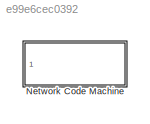
MODEL slx_e99e6cec0392
KIND library
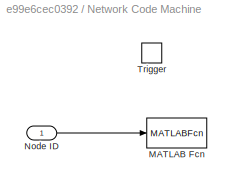
BLOCK [SubSystem] Network Code Machine
  FunctionWithSeparateData = off
  MaskHideContents = off
  MinAlgLoopOccurrences = off
  Opaque = off
  Ports = [1, 0, 0, 1]
  PropExecContextOutsideSubsystem = off
  RTWSystemCode = Auto
  RequestExecContextInheritance = off
  TreatAsAtomicUnit = on
BLOCK [MATLABFcn] Network Code Machine/MATLAB Fcn
  MATLABFcn = ttNCM(u(1))
  OutputDimensions = 0
  Ports = [1]
BLOCK [Inport] Network Code Machine/Node ID
  IconDisplay = Port number
BLOCK [TriggerPort] Network Code Machine/Trigger
  Ports = []
  StatesWhenEnabling = held
  TriggerType = either
LINE Network Code Machine/Node ID:1 -> Network Code Machine/MATLAB Fcn:1
